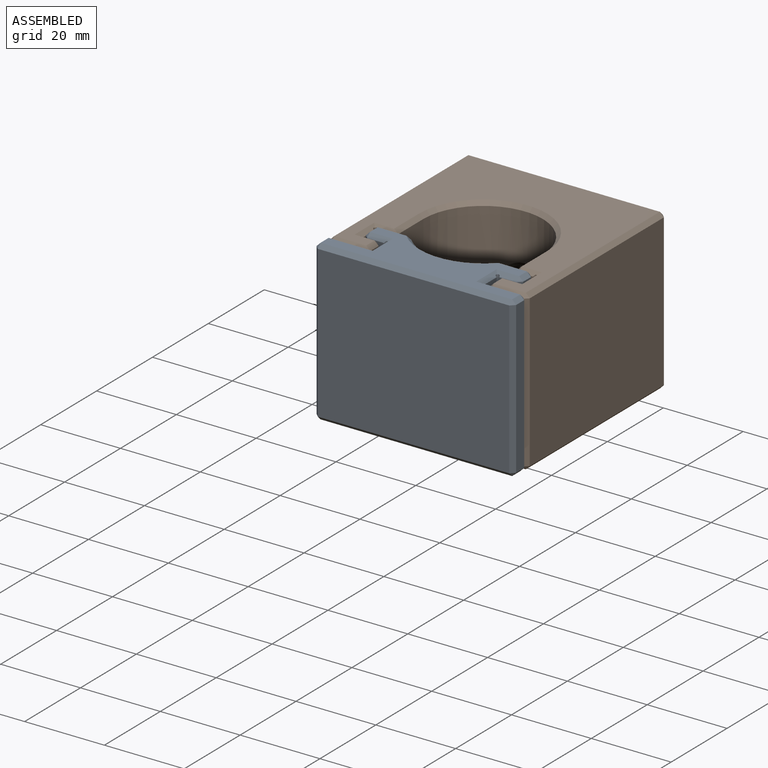
[diagram: assembled view]
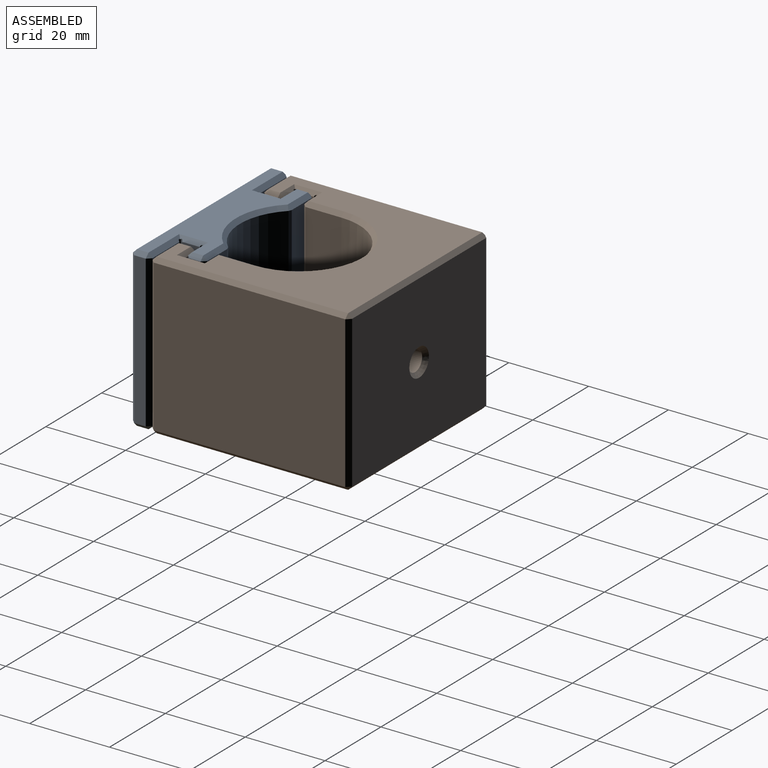
[diagram: assembled view, second angle]
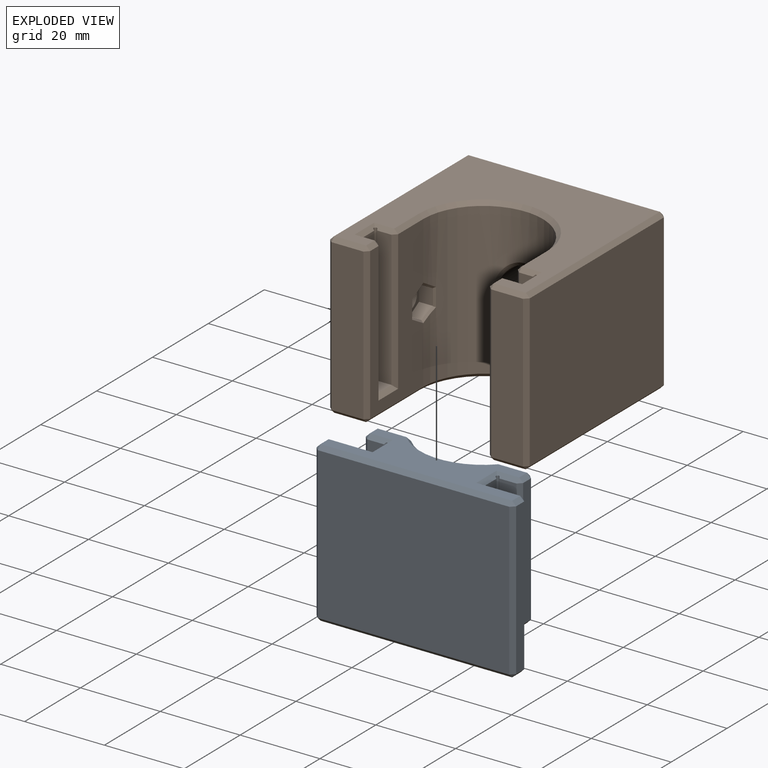
[diagram: exploded view]
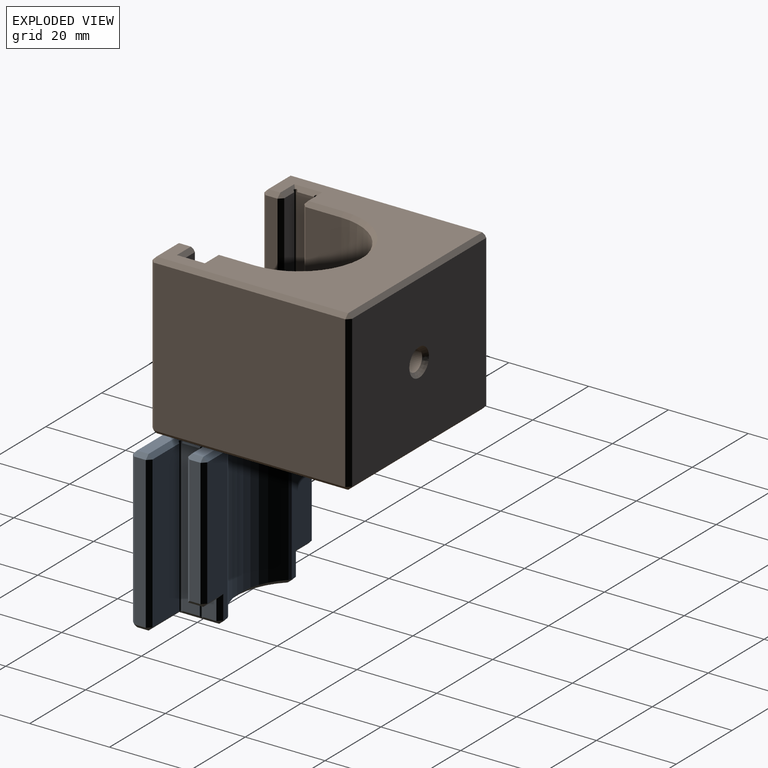
[diagram: exploded view, second angle]
ASSEMBLY  parts=2 mates=2
PART A: 84 faces, bbox 14.9x50x40 mm
  f0: plane 38x4.4mm, normal (0,1,0), area 167.2mm2, adj f66,f67,f80,f81
  f1: plane 38x4.4mm, normal (0,-1,0), area 167.2mm2, adj f22,f36,f82,f83
  f2: plane 38x7.18mm, normal (1,0,0), area 238.5mm2, adj f60,f65,f68,f73,f75,f76
  f3: plane 32x2.8mm, normal (0,1,0), area 89.6mm2, adj f71,f75,f77,f79
  f4: plane 33x4.3mm, normal (-1,0,0), area 141.9mm2, adj f19,f70,f77,f80
  f5: plane 33x4.3mm, normal (-1,0,0), area 141.9mm2, adj f18,f25,f26,f82
  f6: plane 32x2.8mm, normal (0,-1,0), area 89.6mm2, adj f26,f27,f39,f40
  f7: plane 38x7.18mm, normal (1,0,0), area 238.5mm2, adj f28,f35,f40,f46,f49,f50
  f8: plane 48x12.9mm, normal (0,0,1), area 321.3mm2, adj f29,f30,f36,f42,f46,f52,f56,f62
  f9: cylinder r=15mm len=38mm, axis (0,0,-1), area 916.7mm2, adj f50,f56,f59,f60
  f10: plane 5x3.4mm, normal (0,1,0), area 17mm2, adj f19,f66,f73,f80
  f11: plane 38x9.6mm, normal (1,0,0), area 364.8mm2, adj f53,f62,f63,f81
  f12: plane 38x2.9mm, normal (0,1,0), area 110.2mm2, adj f43,f52,f53,f54
  f13: plane 48x38mm, normal (-1,0,0), area 1824mm2, adj f31,f42,f43,f44
  f14: plane 38x2.9mm, normal (0,-1,0), area 110.2mm2, adj f20,f30,f31,f32
  f15: plane 38x9.6mm, normal (1,0,0), area 364.8mm2, adj f20,f21,f29,f83
  f16: plane 5x3.4mm, normal (0,-1,0), area 17mm2, adj f18,f35,f36,f82
  f17: plane 48x12.9mm, normal (0,0,-1), area 353.2mm2, adj f21,f22,f25,f32,f39,f44,f49,f54
  f18: plane 4.7x3.8mm, normal (0,0,1), area 17.7mm2, adj f5,f16,f27,f28,f82
  f19: plane 4.7x3.8mm, normal (0,0,1), area 17.7mm2, adj f4,f10,f76,f79,f80
  f20: plane 38x1mm, normal (0.71,-0.71,0), area 53.7mm2, adj f14,f15,f23,f24
  f21: plane 11x1mm, normal (0.71,0,-0.71), area 14.6mm2, adj f15,f17,f22,f24,f83
  f22: plane 7.2x1mm, normal (0,-0.71,-0.71), area 8.2mm2, adj f1,f17,f21,f25,f82,f83
  f23: plane 1x1mm, normal (0.58,-0.58,0.58), area 0.9mm2, adj f20,f29,f30
  f24: plane 1x1mm, normal (0.58,-0.58,-0.58), area 0.9mm2, adj f20,f21,f32
  f25: plane 5.7x1mm, normal (-0.71,0,-0.71), area 7.1mm2, adj f5,f17,f22,f33,f82
  f26: plane 33x1mm, normal (-0.71,-0.71,0), area 46mm2, adj f5,f6,f27,f33
  f27: plane 3.8x1mm, normal (0,-0.71,0.71), area 4.7mm2, adj f6,f18,f26,f34
  f28: plane 5.7x1mm, normal (0.71,0,0.71), area 7.4mm2, adj f7,f18,f34,f35
  f29: plane 11x1mm, normal (0.71,0,0.71), area 14.6mm2, adj f8,f15,f23,f36,f83
  f30: plane 2.9x1mm, normal (0,-0.71,0.71), area 4.1mm2, adj f8,f14,f23,f37
  f31: plane 38x1mm, normal (-0.71,-0.71,0), area 53.7mm2, adj f13,f14,f37,f38
  f32: plane 2.9x1mm, normal (0,-0.71,-0.71), area 4.1mm2, adj f14,f17,f24,f38
  f33: plane 1x1mm, normal (-0.58,-0.58,-0.58), area 0.9mm2, adj f25,f26,f39
  f34: plane 1x1mm, normal (0.58,-0.58,0.58), area 0.9mm2, adj f27,f28,f40
  f35: plane 6x1mm, normal (0.71,-0.71,0), area 7.8mm2, adj f7,f16,f28,f41
  f36: plane 10x1mm, normal (0,-0.71,0.71), area 12.8mm2, adj f1,f8,f16,f29,f41,f82,f83
  f37: plane 1x1mm, normal (-0.58,-0.58,0.58), area 0.9mm2, adj f30,f31,f42
  f38: plane 1x1mm, normal (-0.58,-0.58,-0.58), area 0.9mm2, adj f31,f32,f44
  f39: plane 2.8x1mm, normal (0,-0.71,-0.71), area 4mm2, adj f6,f17,f33,f45
  f40: plane 32x1mm, normal (0.71,-0.71,0), area 45.3mm2, adj f6,f7,f34,f45
  f41: plane 1x1mm, normal (0.58,-0.58,0.58), area 0.9mm2, adj f35,f36,f46
  f42: plane 48x1mm, normal (-0.71,0,0.71), area 67.9mm2, adj f8,f13,f37,f47
  f43: plane 38x1mm, normal (-0.71,0.71,0), area 53.7mm2, adj f12,f13,f47,f48
  f44: plane 48x1mm, normal (-0.71,0,-0.71), area 67.9mm2, adj f13,f17,f38,f48
  f45: plane 1x1mm, normal (0.58,-0.58,-0.58), area 0.9mm2, adj f39,f40,f49
  f46: plane 1.48x1mm, normal (0.71,0,0.71), area 2.1mm2, adj f7,f8,f41,f51
  f47: plane 1x1mm, normal (-0.58,0.58,0.58), area 0.9mm2, adj f42,f43,f52
  f48: plane 1x1mm, normal (-0.58,0.58,-0.58), area 0.9mm2, adj f43,f44,f54
  f49: plane 7.18x1mm, normal (0.71,0,-0.71), area 10.1mm2, adj f7,f17,f45,f55
  f50: plane 38x0.72mm, normal (0.92,0.39,0), area 29.7mm2, adj f7,f9,f51,f55
  f51: plane 1x1mm, normal (0.68,0.29,0.68), area 0.5mm2, adj f46,f50,f56
  f52: plane 2.9x1mm, normal (0,0.71,0.71), area 4.1mm2, adj f8,f12,f47,f57
  f53: plane 38x1mm, normal (0.71,0.71,0), area 53.7mm2, adj f11,f12,f57,f58
  f54: plane 2.9x1mm, normal (0,0.71,-0.71), area 4.1mm2, adj f12,f17,f48,f58
  f55: plane 1x1mm, normal (0.68,0.29,-0.68), area 0.5mm2, adj f49,f50,f59
  f56: cone r=15mm half-angle=45deg, axis (0,0,1), area 35.3mm2, adj f8,f9,f51,f61
  f57: plane 1x1mm, normal (0.58,0.58,0.58), area 0.9mm2, adj f52,f53,f62
  f58: plane 1x1mm, normal (0.58,0.58,-0.58), area 0.9mm2, adj f53,f54,f63
  f59: cone r=16mm half-angle=45deg, axis (0,0,-1), area 35.3mm2, adj f9,f17,f55,f64
  f60: plane 38x0.72mm, normal (0.92,-0.39,0), area 29.7mm2, adj f2,f9,f61,f64
  f61: plane 1x1mm, normal (0.68,-0.29,0.68), area 0.5mm2, adj f56,f60,f65
  f62: plane 11x1mm, normal (0.71,0,0.71), area 14.6mm2, adj f8,f11,f57,f66,f81
  f63: plane 11x1mm, normal (0.71,0,-0.71), area 14.6mm2, adj f11,f17,f58,f67,f81
  f64: plane 1x1mm, normal (0.68,-0.29,-0.68), area 0.5mm2, adj f59,f60,f68
  f65: plane 1.48x1mm, normal (0.71,0,0.71), area 2.1mm2, adj f2,f8,f61,f69
  f66: plane 10x1mm, normal (0,0.71,0.71), area 12.8mm2, adj f0,f8,f10,f62,f69,f80,f81
  f67: plane 7.2x1mm, normal (0,0.71,-0.71), area 8.2mm2, adj f0,f17,f63,f70,f80,f81
  f68: plane 7.18x1mm, normal (0.71,0,-0.71), area 10.1mm2, adj f2,f17,f64,f72
  f69: plane 1x1mm, normal (0.58,0.58,0.58), area 0.9mm2, adj f65,f66,f73
  f70: plane 5.7x1mm, normal (-0.71,0,-0.71), area 7.1mm2, adj f4,f17,f67,f74,f80
  f71: plane 2.8x1mm, normal (0,0.71,-0.71), area 4mm2, adj f3,f17,f72,f74
  f72: plane 1x1mm, normal (0.58,0.58,-0.58), area 0.9mm2, adj f68,f71,f75
  f73: plane 6x1mm, normal (0.71,0.71,0), area 7.8mm2, adj f2,f10,f69,f76
  f74: plane 1x1mm, normal (-0.58,0.58,-0.58), area 0.9mm2, adj f70,f71,f77
  f75: plane 32x1mm, normal (0.71,0.71,0), area 45.3mm2, adj f2,f3,f72,f78
  f76: plane 5.7x1mm, normal (0.71,0,0.71), area 7.4mm2, adj f2,f19,f73,f78
  f77: plane 33x1mm, normal (-0.71,0.71,0), area 46mm2, adj f3,f4,f74,f79
  f78: plane 1x1mm, normal (0.58,0.58,0.58), area 0.9mm2, adj f75,f76,f79
  f79: plane 3.8x1mm, normal (0,0.71,0.71), area 4.7mm2, adj f3,f19,f77,f78
  f80: cylinder r=0.4mm len=38.8mm, axis (0,0,1), area 69.4mm2, adj f0,f4,f10,f19,f66,f67,f70
  f81: cylinder r=0.4mm len=38.8mm, axis (0,0,1), area 72.7mm2, adj f0,f11,f62,f63,f66,f67
  f82: cylinder r=0.4mm len=38.8mm, axis (0,0,1), area 69.4mm2, adj f1,f5,f16,f18,f22,f25,f36
  f83: cylinder r=0.4mm len=38.8mm, axis (0,0,1), area 72.7mm2, adj f1,f15,f21,f22,f29,f36
PART B: 95 faces, bbox 50.5x50.5x40.5 mm
  f0: plane 34x3.6mm, normal (1,0,0), area 122.4mm2, adj f13,f34,f35,f78
  f1: plane 34x4.2mm, normal (0,1,0), area 142.8mm2, adj f13,f32,f78,f79
  f2: plane 34x3.6mm, normal (-1,0,0), area 122.4mm2, adj f13,f27,f28,f79
  f3: plane 38x19mm, normal (0,1,0), area 477mm2, adj f6,f21,f27,f31,f34,f43,f47,f48
  f4: plane 48x48mm, normal (0,0,1), area 1223.9mm2, adj f18,f19,f21,f22,f25,f28,f29,f32
  f5: plane 38x19mm, normal (0,-1,0), area 449.8mm2, adj f6,f18,f23,f26,f30,f36,f37,f38
  f6: cylinder r=15mm len=38mm, axis (0,0,-1), area 1604.9mm2, adj f3,f5,f19,f42,f84,f85,f86,f94
  f7: plane 38x8mm, normal (-1,0,0), area 304mm2, adj f48,f53,f57,f58
  f8: plane 48x38mm, normal (0,-1,0), area 1824mm2, adj f58,f63,f66,f69
  f9: plane 48x38mm, normal (1,0,0), area 1785.5mm2, adj f55,f64,f65,f69,f93
  f10: plane 48x38mm, normal (0,1,0), area 1800.2mm2, adj f45,f54,f55,f56,f83
  f11: plane 38x8mm, normal (-1,0,0), area 304mm2, adj f37,f44,f45,f46
  f12: plane 48x48mm, normal (0,0,-1), area 1293.9mm2, adj f38,f42,f46,f47,f56,f57,f65,f66
  f13: plane 5.8x4.4mm, normal (0,0,1), area 20.8mm2, adj f0,f1,f2,f31,f78,f79
  f14: plane 34x3.6mm, normal (1,0,0), area 122.4mm2, adj f17,f29,f30,f80
  f15: plane 34x3.6mm, normal (-1,0,0), area 122.4mm2, adj f17,f22,f23,f81
  f16: plane 34x4.2mm, normal (0,-1,0), area 142.8mm2, adj f17,f25,f80,f81
  f17: plane 5.8x4.4mm, normal (0,0,1), area 20.8mm2, adj f14,f15,f16,f26,f80,f81
  f18: plane 9x1mm, normal (0,-0.71,0.71), area 12.7mm2, adj f4,f5,f19,f20
  f19: cone r=16mm half-angle=45deg, axis (0,0,1), area 68.9mm2, adj f4,f6,f18,f21
  f20: plane 1x1mm, normal (-0.58,-0.58,0.58), area 0.9mm2, adj f18,f22,f23
  f21: plane 9x1mm, normal (0,0.71,0.71), area 12.7mm2, adj f3,f4,f19,f24
  f22: plane 5.46x1.46mm, normal (-0.71,0,0.71), area 6.1mm2, adj f4,f15,f20,f25,f81
  f23: plane 35x1mm, normal (-0.71,-0.71,0), area 48.8mm2, adj f5,f15,f20,f26
  f24: plane 1x1mm, normal (-0.58,0.58,0.58), area 0.9mm2, adj f21,f27,f28
  f25: plane 7.46x1.46mm, normal (0,-0.71,0.71), area 8mm2, adj f4,f16,f22,f29,f80,f81
  f26: plane 7x1mm, normal (0,-0.71,0.71), area 8.5mm2, adj f5,f17,f23,f30
  f27: plane 35x1mm, normal (-0.71,0.71,0), area 48.8mm2, adj f2,f3,f24,f31
  f28: plane 5.46x1.46mm, normal (-0.71,0,0.71), area 6.1mm2, adj f2,f4,f24,f32,f79
  f29: plane 5.46x1.46mm, normal (0.71,0,0.71), area 6.1mm2, adj f4,f14,f25,f33,f80
  f30: plane 35x1mm, normal (0.71,-0.71,0), area 48.8mm2, adj f5,f14,f26,f33
  f31: plane 7x1mm, normal (0,0.71,0.71), area 8.5mm2, adj f3,f13,f27,f34
  f32: plane 7.46x1.46mm, normal (0,0.71,0.71), area 8mm2, adj f1,f4,f28,f35,f78,f79
  f33: plane 1x1mm, normal (0.58,-0.58,0.58), area 0.9mm2, adj f29,f30,f36
  f34: plane 35x1mm, normal (0.71,0.71,0), area 48.8mm2, adj f0,f3,f31,f39
  f35: plane 5.46x1.46mm, normal (0.71,0,0.71), area 6.1mm2, adj f0,f4,f32,f39,f78
  f36: plane 3x1mm, normal (0,-0.71,0.71), area 4.2mm2, adj f4,f5,f33,f40
  f37: plane 38x1mm, normal (-0.71,-0.71,0), area 53.7mm2, adj f5,f11,f40,f41
  f38: plane 19x1mm, normal (0,-0.71,-0.71), area 26.9mm2, adj f5,f12,f41,f42
  f39: plane 1x1mm, normal (0.58,0.58,0.58), area 0.9mm2, adj f34,f35,f43
  f40: plane 1x1mm, normal (-0.58,-0.58,0.58), area 0.9mm2, adj f36,f37,f44
  f41: plane 1x1mm, normal (-0.58,-0.58,-0.58), area 0.9mm2, adj f37,f38,f46
  f42: cone r=15mm half-angle=45deg, axis (0,0,-1), area 68.9mm2, adj f6,f12,f38,f47
  f43: plane 3x1mm, normal (0,0.71,0.71), area 4.2mm2, adj f3,f4,f39,f49
  f44: plane 8x1mm, normal (-0.71,0,0.71), area 11.3mm2, adj f4,f11,f40,f50
  f45: plane 38x1mm, normal (-0.71,0.71,0), area 53.7mm2, adj f10,f11,f50,f51
  f46: plane 8x1mm, normal (-0.71,0,-0.71), area 11.3mm2, adj f11,f12,f41,f51
  f47: plane 19x1mm, normal (0,0.71,-0.71), area 26.9mm2, adj f3,f12,f42,f52
  f48: plane 38x1mm, normal (-0.71,0.71,0), area 53.7mm2, adj f3,f7,f49,f52
  f49: plane 1x1mm, normal (-0.58,0.58,0.58), area 0.9mm2, adj f43,f48,f53
  f50: plane 1x1mm, normal (-0.58,0.58,0.58), area 0.9mm2, adj f44,f45,f54
  f51: plane 1x1mm, normal (-0.58,0.58,-0.58), area 0.9mm2, adj f45,f46,f56
  f52: plane 1x1mm, normal (-0.58,0.58,-0.58), area 0.9mm2, adj f47,f48,f57
  f53: plane 8x1mm, normal (-0.71,0,0.71), area 11.3mm2, adj f4,f7,f49,f59
  f54: plane 48x1mm, normal (0,0.71,0.71), area 67.9mm2, adj f4,f10,f50,f60
  f55: plane 38x1mm, normal (0.71,0.71,0), area 53.7mm2, adj f9,f10,f60,f61
  f56: plane 48x1mm, normal (0,0.71,-0.71), area 67.9mm2, adj f10,f12,f51,f61
  f57: plane 8x1mm, normal (-0.71,0,-0.71), area 11.3mm2, adj f7,f12,f52,f62
  f58: plane 38x1mm, normal (-0.71,-0.71,0), area 53.7mm2, adj f7,f8,f59,f62
  f59: plane 1x1mm, normal (-0.58,-0.58,0.58), area 0.9mm2, adj f53,f58,f63
  f60: plane 1x1mm, normal (0.58,0.58,0.58), area 0.9mm2, adj f54,f55,f64
  f61: plane 1x1mm, normal (0.58,0.58,-0.58), area 0.9mm2, adj f55,f56,f65
  f62: plane 1x1mm, normal (-0.58,-0.58,-0.58), area 0.9mm2, adj f57,f58,f66
  f63: plane 48x1mm, normal (0,-0.71,0.71), area 67.9mm2, adj f4,f8,f59,f67
  f64: plane 48x1mm, normal (0.71,0,0.71), area 67.9mm2, adj f4,f9,f60,f67
  f65: plane 48x1mm, normal (0.71,0,-0.71), area 67.9mm2, adj f9,f12,f61,f68
  f66: plane 48x1mm, normal (0,-0.71,-0.71), area 67.9mm2, adj f8,f12,f62,f68
  f67: plane 1x1mm, normal (0.58,-0.58,0.58), area 0.9mm2, adj f63,f64,f69
  f68: plane 1x1mm, normal (0.58,-0.58,-0.58), area 0.9mm2, adj f65,f66,f69
  f69: plane 38x1mm, normal (0.71,-0.71,0), area 53.7mm2, adj f8,f9,f67,f68
  f70: plane 4x3mm, normal (1,0,0), area 12mm2, adj f71,f75,f76,f89
  f71: plane 3.46x3mm, normal (0.5,0,0.87), area 12mm2, adj f70,f72,f76,f87
  f72: plane 3.47x3.45mm, normal (-0.5,0,0.87), area 12.6mm2, adj f71,f73,f76,f85
  f73: plane 4.14x3.52mm, normal (-1,0,0), area 14.1mm2, adj f72,f74,f76,f84,f85,f86
  f74: plane 3.47x3.45mm, normal (-0.5,0,-0.87), area 12.6mm2, adj f73,f75,f76,f86
  f75: plane 3.46x3mm, normal (0.5,0,-0.87), area 12mm2, adj f70,f74,f76,f88
  f76: plane 8x6.93mm, normal (0,-1,0), area 17.8mm2, adj f70,f71,f72,f73,f74,f75,f82
  f77: cylinder r=2.25mm len=5.5mm, axis (0,-1,0), area 77.8mm2, adj f82,f83
  f78: cylinder r=0.4mm len=34.28mm, axis (0,0,1), area 64.4mm2, adj f0,f1,f13,f32,f35
  f79: cylinder r=0.4mm len=34.28mm, axis (0,0,1), area 64.4mm2, adj f1,f2,f13,f28,f32
  f80: cylinder r=0.4mm len=34.28mm, axis (0,0,1), area 64.4mm2, adj f14,f16,f17,f25,f29
  f81: cylinder r=0.4mm len=34.28mm, axis (0,0,1), area 64.4mm2, adj f15,f16,f17,f22,f25
  f82: cone r=2.25mm half-angle=45deg, axis (0,-1,0), area 11.1mm2, adj f76,f77
  f83: cone r=2.25mm half-angle=45deg, axis (0,1,0), area 11.1mm2, adj f10,f77
  f84: plane 4.58x0.49mm, normal (-0.79,-0.61,0), area 2.7mm2, adj f6,f73,f85,f86
  f85: bspline ~4.09x2.72mm, area 2.9mm2, adj f6,f72,f73,f84,f87
  f86: bspline ~4.09x2.72mm, area 2.9mm2, adj f6,f73,f74,f84,f88
  f87: plane 3.97x2.58mm, normal (0.35,-0.71,0.61), area 3mm2, adj f5,f71,f85,f89
  f88: plane 3.97x2.58mm, normal (0.35,-0.71,-0.61), area 3mm2, adj f5,f75,f86,f89
  f89: plane 4.58x0.5mm, normal (0.71,-0.71,0), area 3mm2, adj f5,f70,f87,f88
  f90: cylinder r=2.5mm len=7.75mm, axis (1,0,0), area 121.7mm2, adj f92,f93
  f91: cylinder r=6.25mm len=12.5mm, axis (1,0,0), area 206.2mm2, adj f92,f94
  f92: plane 12.5x12.5mm, normal (-1,0,0), area 103.1mm2, adj f90,f91
  f93: cone r=2.5mm half-angle=45deg, axis (1,0,0), area 26.7mm2, adj f9,f90
  f94: bspline ~14.49x13.59mm, area 52.3mm2, adj f6,f91
PLACE A rot(axis=(-0.71,-0.71,0),180deg) t=(-12.77,19.26,42.61)mm
PLACE B rot(axis=(0,0,1),90deg) t=(-12.77,47.3,2.25)mm fixed
MATE planar A.f12 <-> B.f8  axis (1,0,0) through (12.23,-5.8,22.61)mm
MATE planar A.f11 <-> B.f7  axis (0,1,0) through (11.23,-3.35,41.61)mm
